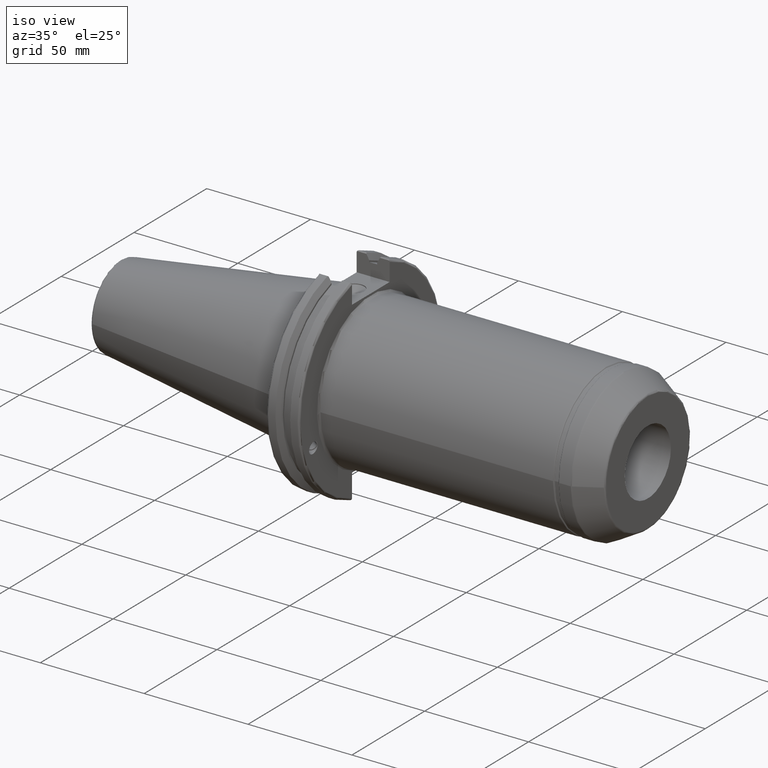
[diagram: clean part render]
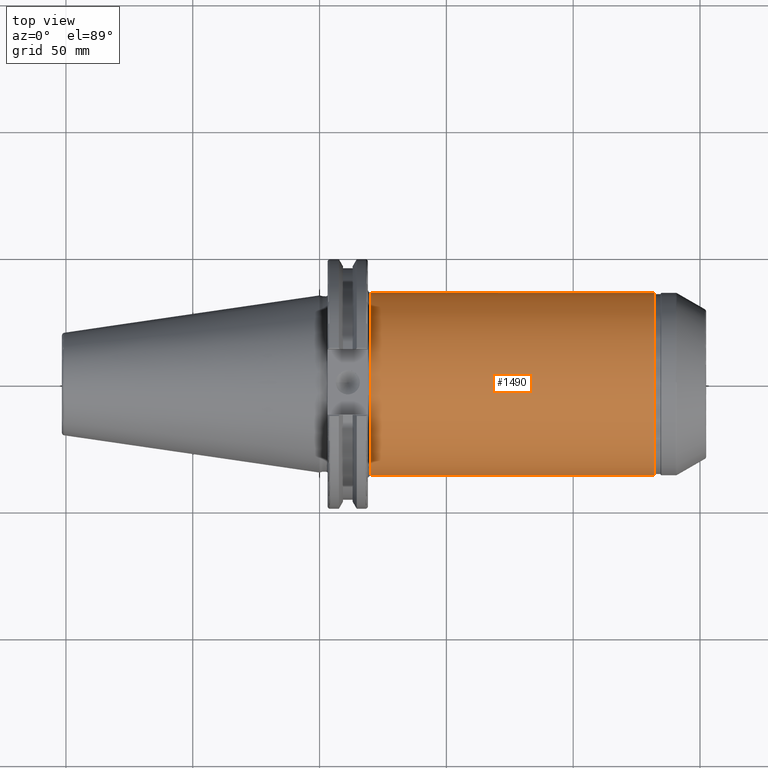
[diagram: tour spotlight — one face highlighted and labeled with its STEP entity id]
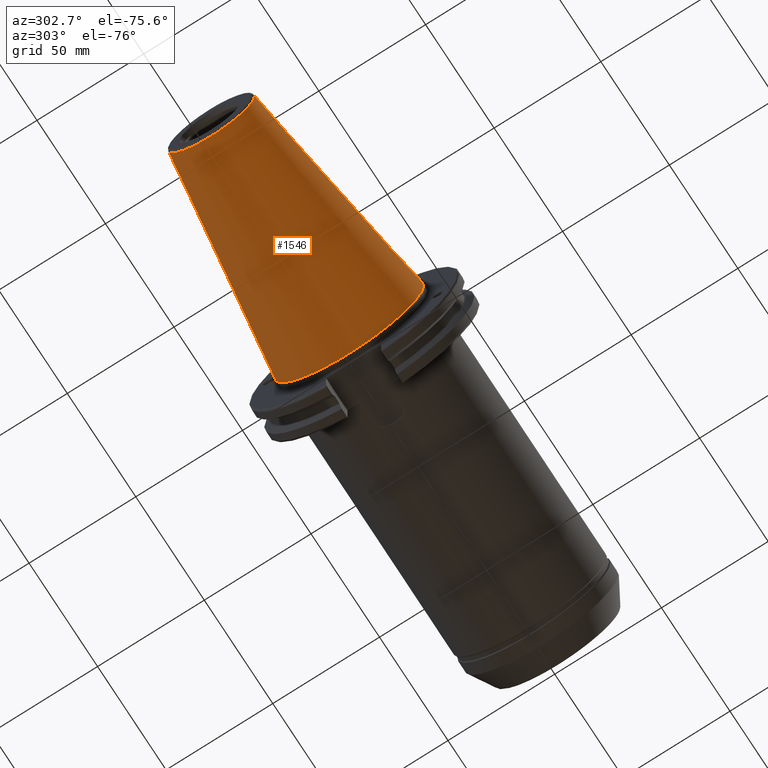
[diagram: tour spotlight — one face highlighted and labeled with its STEP entity id]
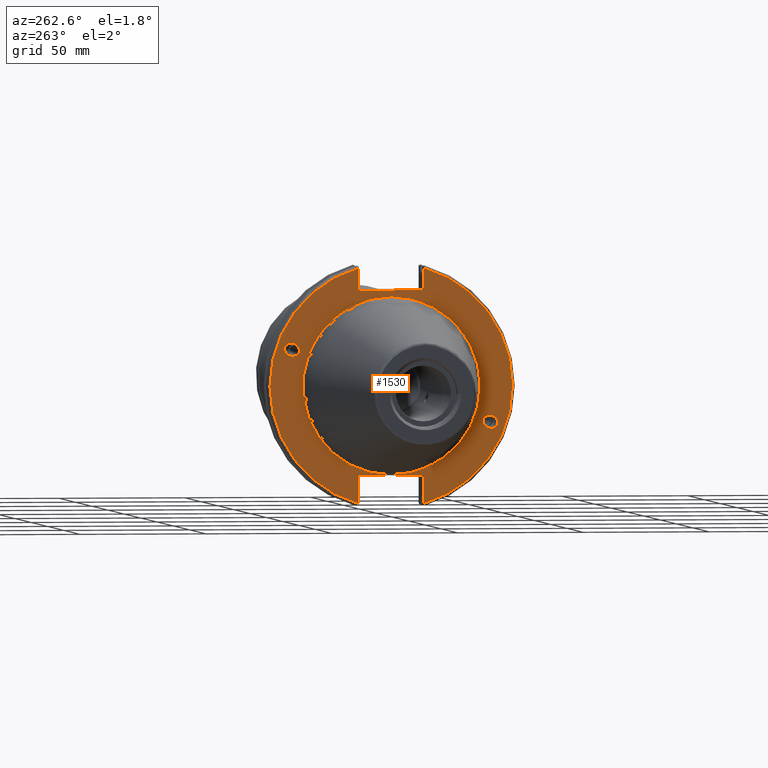
[diagram: tour spotlight — one face highlighted and labeled with its STEP entity id]
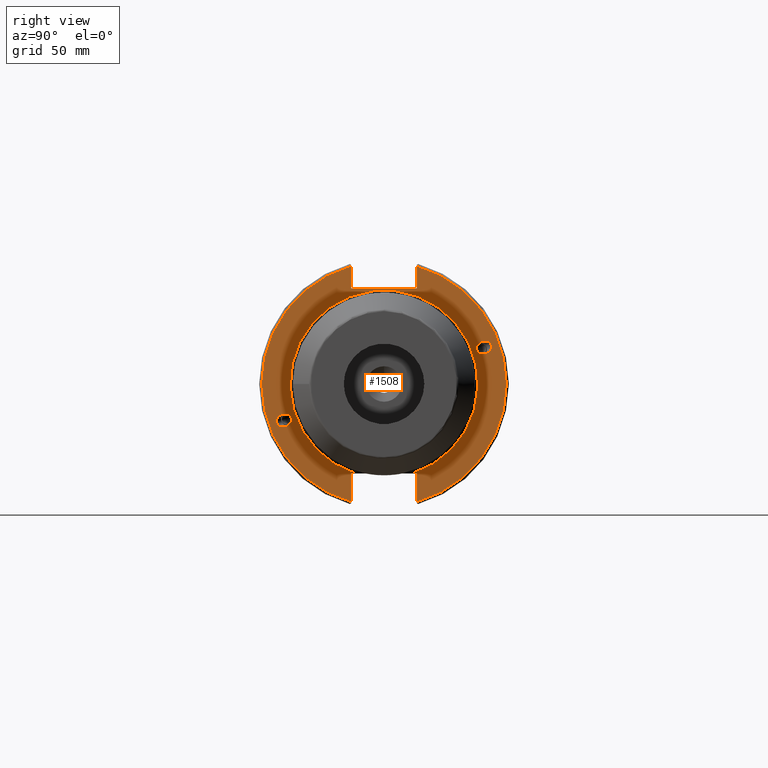
[diagram: tour spotlight — one face highlighted and labeled with its STEP entity id]
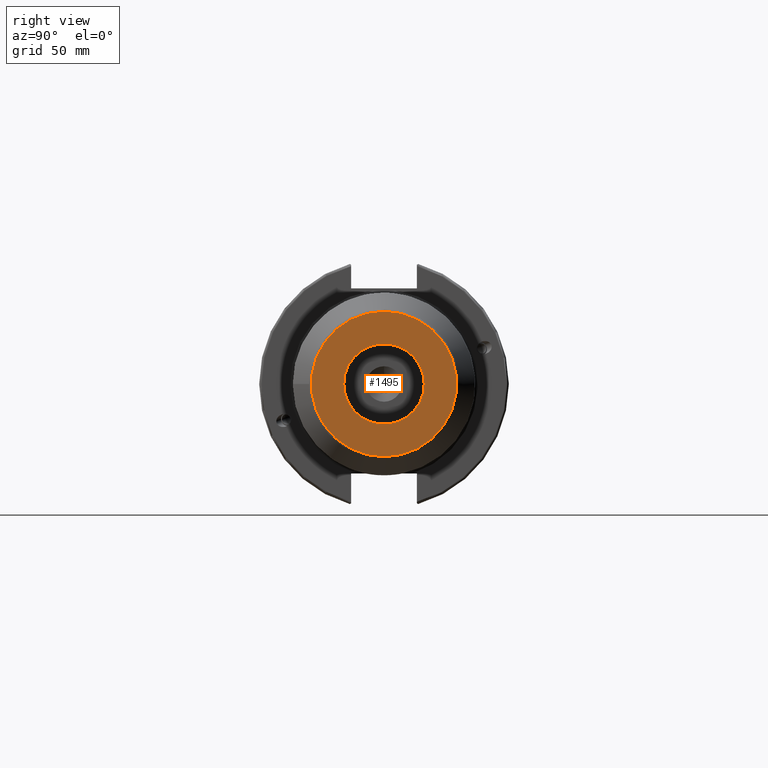
[diagram: tour spotlight — one face highlighted and labeled with its STEP entity id]
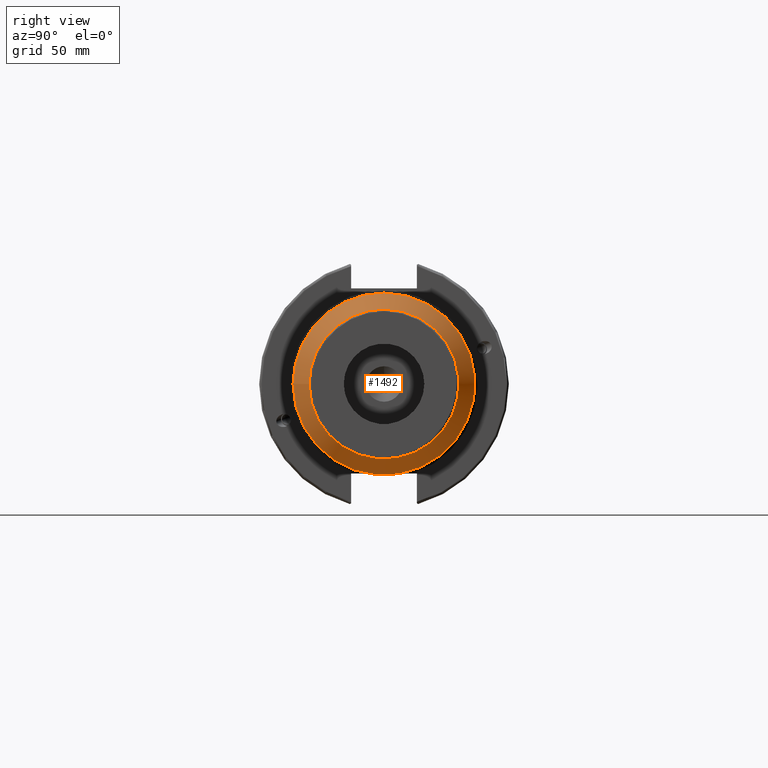
[diagram: tour spotlight — one face highlighted and labeled with its STEP entity id]
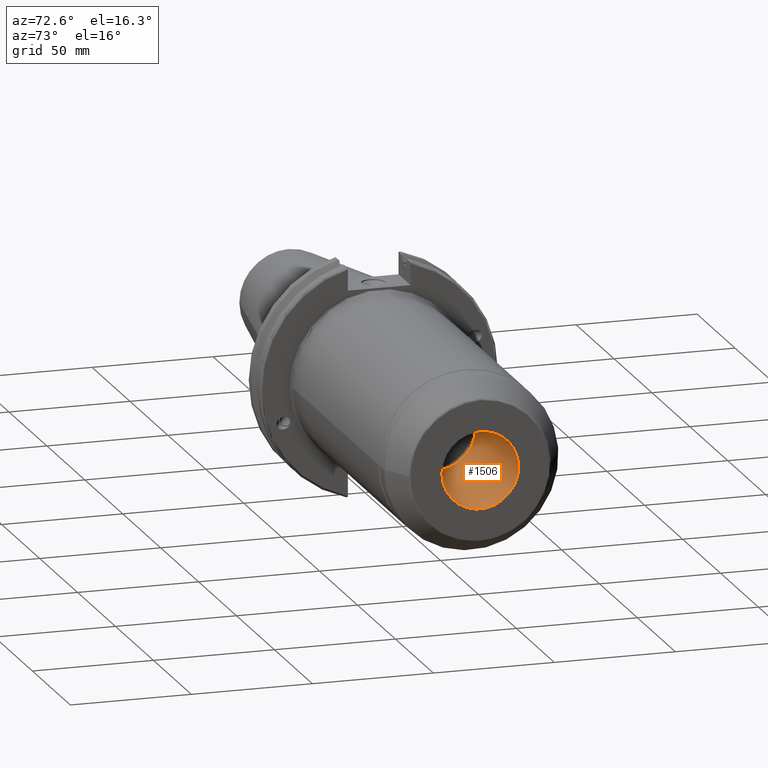
[diagram: tour spotlight — one face highlighted and labeled with its STEP entity id]
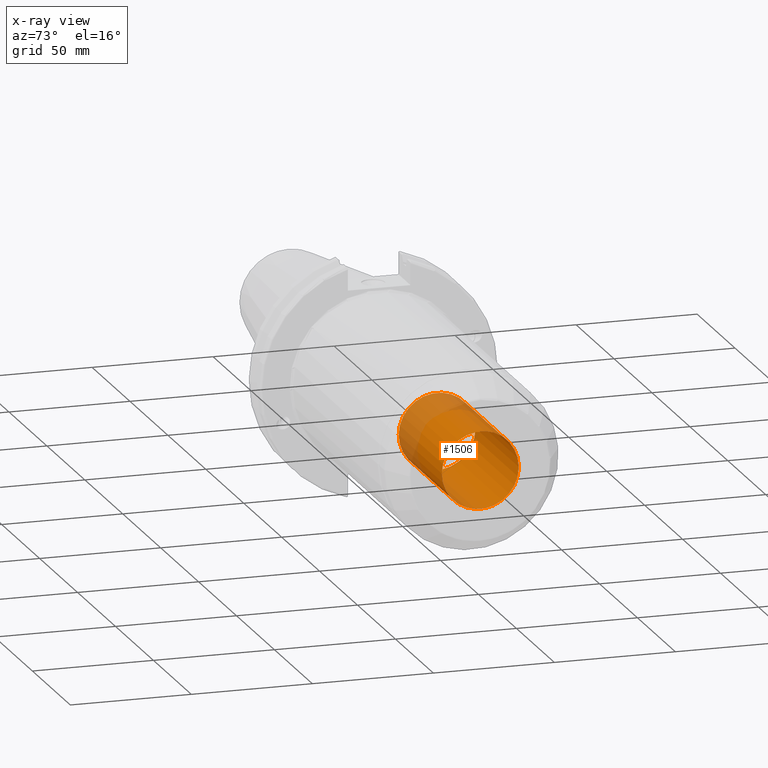
[diagram: x-ray of the same camera — body ghosted, this tour face saturated]
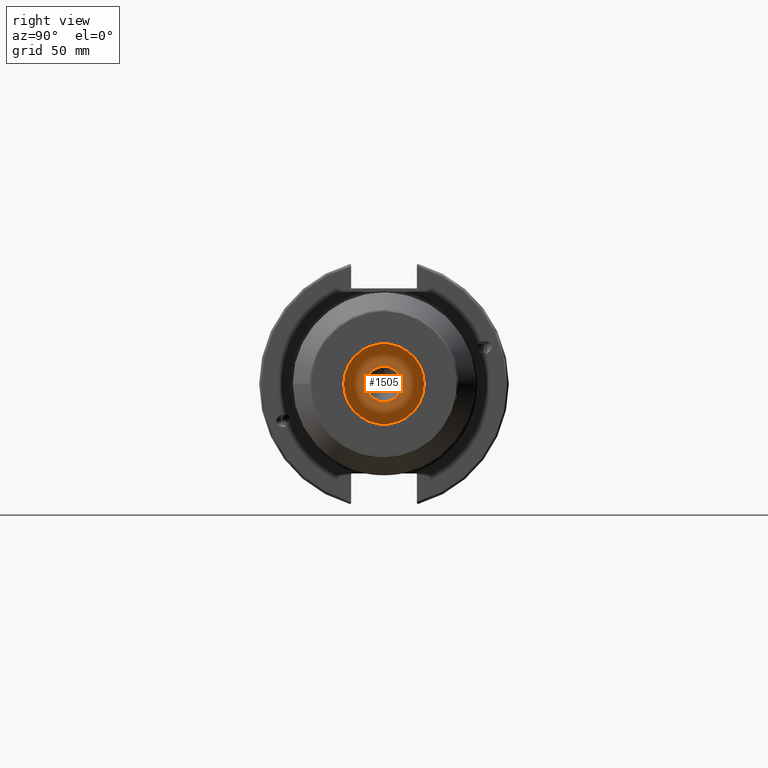
[diagram: tour spotlight — one face highlighted and labeled with its STEP entity id]
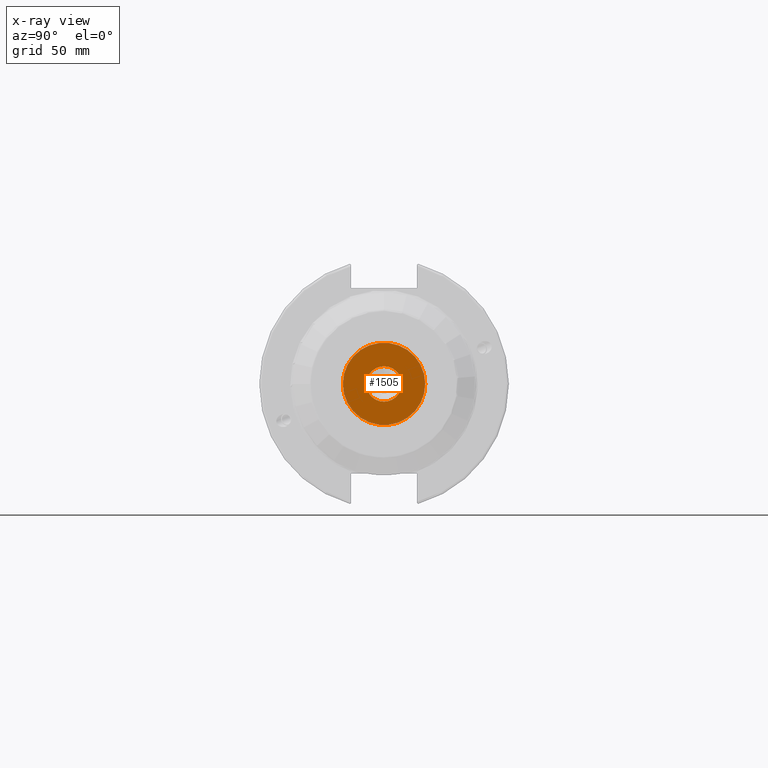
[diagram: x-ray of the same camera — body ghosted, this tour face saturated]
A machine part: a face-by-face anatomy tour. The part has 89 B-rep faces; the first image is the clean iso view, then the 8 largest visible faces are spotlighted one at a time (largest first), each with its STEP entity span.

Face 1 — top view, entity #1490. In plain terms, the highlighted cylindrical surface (bore or boss wall) has radius 36 mm, axis along (1, 0, 0).
Definition (entity closure, byte-faithful):
#99=B_SPLINE_CURVE_WITH_KNOTS('',3,(#2347,#2348,#2349,#2350,#2351,#2352,
#2353,#2354,#2355,#2356),.UNSPECIFIED.,.F.,.F.,(4,2,2,2,4),(5.19636271328388,
5.41905605272727,5.91152523905849,6.4039944253897,6.6266877648331),
 .UNSPECIFIED.);
#155=FACE_OUTER_BOUND('',#244,.T.);
#244=EDGE_LOOP('',(#1014,#1015,#1016,#1017,#1018,#1019,#1020,#1021,#1022));
#349=LINE('',#2343,#432);
#350=LINE('',#2345,#433);
#351=LINE('',#2357,#434);
#432=VECTOR('',#1839,36.);
#433=VECTOR('',#1840,10.);
#434=VECTOR('',#1841,10.);
#517=CIRCLE('',#1609,36.);
#518=CIRCLE('',#1610,36.);
#520=CIRCLE('',#1613,36.);
#521=CIRCLE('',#1614,36.);
#609=VERTEX_POINT('',#2308);
#610=VERTEX_POINT('',#2321);
#611=VERTEX_POINT('',#2323);
#613=VERTEX_POINT('',#2340);
#614=VERTEX_POINT('',#2341);
#615=VERTEX_POINT('',#2344);
#616=VERTEX_POINT('',#2346);
#767=EDGE_CURVE('',#609,#610,#517,.T.);
#768=EDGE_CURVE('',#610,#611,#518,.T.);
#771=EDGE_CURVE('',#613,#614,#520,.T.);
#772=EDGE_CURVE('',#613,#610,#349,.T.);
#773=EDGE_CURVE('',#609,#615,#350,.T.);
#774=EDGE_CURVE('',#615,#616,#99,.T.);
#775=EDGE_CURVE('',#616,#611,#351,.T.);
#776=EDGE_CURVE('',#614,#613,#521,.T.);
#1014=ORIENTED_EDGE('',*,*,#771,.F.);
#1015=ORIENTED_EDGE('',*,*,#772,.T.);
#1016=ORIENTED_EDGE('',*,*,#767,.F.);
#1017=ORIENTED_EDGE('',*,*,#773,.T.);
#1018=ORIENTED_EDGE('',*,*,#774,.T.);
#1019=ORIENTED_EDGE('',*,*,#775,.T.);
#1020=ORIENTED_EDGE('',*,*,#768,.F.);
#1021=ORIENTED_EDGE('',*,*,#772,.F.);
#1022=ORIENTED_EDGE('',*,*,#776,.F.);
#1456=CYLINDRICAL_SURFACE('',#1612,36.);
#1490=ADVANCED_FACE('',(#155),#1456,.T.);
#1609=AXIS2_PLACEMENT_3D('',#2322,#1829,#1830);
#1610=AXIS2_PLACEMENT_3D('',#2324,#1831,#1832);
#1612=AXIS2_PLACEMENT_3D('',#2339,#1835,#1836);
#1613=AXIS2_PLACEMENT_3D('',#2342,#1837,#1838);
#1614=AXIS2_PLACEMENT_3D('',#2358,#1842,#1843);
#1829=DIRECTION('center_axis',(-1.,0.,0.));
#1830=DIRECTION('ref_axis',(0.,6.12323399573677E-17,1.));
#1831=DIRECTION('center_axis',(-1.,0.,0.));
#1832=DIRECTION('ref_axis',(0.,6.12323399573677E-17,1.));
#1835=DIRECTION('center_axis',(1.,0.,0.));
#1836=DIRECTION('ref_axis',(0.,1.,0.));
#1837=DIRECTION('center_axis',(1.,0.,0.));
#1838=DIRECTION('ref_axis',(0.,-1.,1.83697019872103E-16));
#1839=DIRECTION('',(-1.,0.,0.));
#1840=DIRECTION('',(1.,0.,0.));
#1841=DIRECTION('',(-1.,0.,0.));
#1842=DIRECTION('center_axis',(1.,0.,0.));
#1843=DIRECTION('ref_axis',(0.,-1.,1.83697019872103E-16));
#2308=CARTESIAN_POINT('',(20.05,-7.03465450466478,-35.306));
#2321=CARTESIAN_POINT('',(20.05,-36.,-4.40872847693047E-15));
#2322=CARTESIAN_POINT('Origin',(20.05,0.,0.));
#2323=CARTESIAN_POINT('',(20.05,7.03465450466478,-35.306));
#2324=CARTESIAN_POINT('Origin',(20.05,0.,0.));
#2339=CARTESIAN_POINT('Origin',(75.5806624327026,0.,0.));
#2340=CARTESIAN_POINT('',(131.880384757729,-36.,-4.40872847693047E-15));
#2341=CARTESIAN_POINT('',(131.880384757729,-4.40872847693047E-15,36.));
#2342=CARTESIAN_POINT('Origin',(131.880384757729,0.,0.));
#2343=CARTESIAN_POINT('',(75.5806624327026,-36.,-4.40872847693047E-15));
#2344=CARTESIAN_POINT('',(30.922724405594,-7.03465450466478,-35.306));
#2345=CARTESIAN_POINT('',(75.5806624327026,-7.03465450466478,-35.306));
#2346=CARTESIAN_POINT('',(30.922724405594,7.03465450466479,-35.306));
#2347=CARTESIAN_POINT('Ctrl Pts',(30.922724405594,-7.03465450466478,-35.306));
#2348=CARTESIAN_POINT('Ctrl Pts',(31.3406894769426,-6.38864992420887,-35.4347152051192));
#2349=CARTESIAN_POINT('Ctrl Pts',(31.7059371752726,-5.69654690692486,-35.5538825165794));
#2350=CARTESIAN_POINT('Ctrl Pts',(32.6689434050729,-3.38276687280267,-35.8768020615896));
#2351=CARTESIAN_POINT('Ctrl Pts',(33.,-1.64156395443738,-36.));
#2352=CARTESIAN_POINT('Ctrl Pts',(33.,1.64156395443738,-36.));
#2353=CARTESIAN_POINT('Ctrl Pts',(32.6689434050729,3.38276687280267,-35.8768020615896));
#2354=CARTESIAN_POINT('Ctrl Pts',(31.7059371752726,5.69654690692486,-35.5538825165794));
#2355=CARTESIAN_POINT('Ctrl Pts',(31.3406894769426,6.38864992420887,-35.4347152051192));
#2356=CARTESIAN_POINT('Ctrl Pts',(30.922724405594,7.03465450466478,-35.306));
#2357=CARTESIAN_POINT('',(75.5806624327026,7.03465450466478,-35.306));
#2358=CARTESIAN_POINT('Origin',(131.880384757729,0.,0.));

Face 2 — auxiliary view, entity #1546. In plain terms, the highlighted conical surface has half-angle 8.297 deg.
Definition (entity closure, byte-faithful):
#141=CONICAL_SURFACE('',#1753,27.5166666666666,0.14481249823894);
#211=FACE_OUTER_BOUND('',#315,.T.);
#315=EDGE_LOOP('',(#1324,#1325,#1326,#1327,#1328));
#412=LINE('',#2910,#495);
#495=VECTOR('',#2184,27.5166666666666);
#580=CIRCLE('',#1747,20.233121911427);
#581=CIRCLE('',#1748,20.233121911427);
#585=CIRCLE('',#1754,34.925);
#735=VERTEX_POINT('',#2897);
#736=VERTEX_POINT('',#2898);
#739=VERTEX_POINT('',#2908);
#945=EDGE_CURVE('',#735,#736,#580,.T.);
#946=EDGE_CURVE('',#736,#735,#581,.T.);
#950=EDGE_CURVE('',#739,#739,#585,.T.);
#951=EDGE_CURVE('',#739,#736,#412,.T.);
#1324=ORIENTED_EDGE('',*,*,#950,.F.);
#1325=ORIENTED_EDGE('',*,*,#951,.T.);
#1326=ORIENTED_EDGE('',*,*,#945,.F.);
#1327=ORIENTED_EDGE('',*,*,#946,.F.);
#1328=ORIENTED_EDGE('',*,*,#951,.F.);
#1546=ADVANCED_FACE('',(#211),#141,.T.);
#1747=AXIS2_PLACEMENT_3D('',#2899,#2168,#2169);
#1748=AXIS2_PLACEMENT_3D('',#2900,#2170,#2171);
#1753=AXIS2_PLACEMENT_3D('',#2907,#2180,#2181);
#1754=AXIS2_PLACEMENT_3D('',#2909,#2182,#2183);
#2168=DIRECTION('center_axis',(-1.,0.,0.));
#2169=DIRECTION('ref_axis',(0.,-1.,3.06161699786838E-17));
#2170=DIRECTION('center_axis',(-1.,0.,0.));
#2171=DIRECTION('ref_axis',(0.,-1.,3.06161699786838E-17));
#2180=DIRECTION('center_axis',(1.,0.,0.));
#2181=DIRECTION('ref_axis',(0.,1.,0.));
#2182=DIRECTION('center_axis',(1.,0.,0.));
#2183=DIRECTION('ref_axis',(0.,0.,-1.));
#2184=DIRECTION('',(-0.989532981063281,0.144306893071729,1.76724974695192E-17));
#2897=CARTESIAN_POINT('',(-100.744306893072,-2.47784279855872E-15,20.233121911427));
#2898=CARTESIAN_POINT('',(-100.744306893072,-20.233121911427,-2.47784279855872E-15));
#2899=CARTESIAN_POINT('Origin',(-100.744306893072,0.,-3.09730349819841E-15));
#2900=CARTESIAN_POINT('Origin',(-100.744306893072,0.,-3.09730349819841E-15));
#2907=CARTESIAN_POINT('Origin',(-50.8,0.,0.));
#2908=CARTESIAN_POINT('',(-8.88178419700125E-15,-34.925,-4.27707894602213E-15));
#2909=CARTESIAN_POINT('Origin',(0.,0.,0.));
#2910=CARTESIAN_POINT('',(-50.8,-27.5166666666666,-3.3698197756538E-15));

Face 3 — auxiliary view, entity #1530. In plain terms, the highlighted planar face has unit normal (-1, 0, 0).
Definition (entity closure, byte-faithful):
#41=ELLIPSE('',#1691,3.05193647190364,2.5);
#50=ELLIPSE('',#1714,3.05193647190364,2.5);
#62=FACE_BOUND('',#296,.T.);
#63=FACE_BOUND('',#297,.T.);
#64=FACE_BOUND('',#298,.T.);
#76=PLANE('',#1724);
#195=FACE_OUTER_BOUND('',#295,.T.);
#295=EDGE_LOOP('',(#1221,#1222,#1223,#1224,#1225,#1226,#1227,#1228));
#296=EDGE_LOOP('',(#1229));
#297=EDGE_LOOP('',(#1230));
#298=EDGE_LOOP('',(#1231));
#382=LINE('',#2659,#465);
#383=LINE('',#2661,#466);
#384=LINE('',#2663,#467);
#385=LINE('',#2667,#468);
#386=LINE('',#2669,#469);
#387=LINE('',#2670,#470);
#465=VECTOR('',#2096,10.);
#466=VECTOR('',#2097,10.);
#467=VECTOR('',#2098,10.);
#468=VECTOR('',#2101,10.);
#469=VECTOR('',#2102,10.);
#470=VECTOR('',#2103,10.);
#570=CIRCLE('',#1722,35.125);
#572=CIRCLE('',#1725,48.2125);
#573=CIRCLE('',#1726,48.2125);
#666=VERTEX_POINT('',#2550);
#681=VERTEX_POINT('',#2635);
#686=VERTEX_POINT('',#2650);
#687=VERTEX_POINT('',#2655);
#688=VERTEX_POINT('',#2656);
#689=VERTEX_POINT('',#2658);
#690=VERTEX_POINT('',#2660);
#691=VERTEX_POINT('',#2662);
#692=VERTEX_POINT('',#2664);
#693=VERTEX_POINT('',#2666);
#694=VERTEX_POINT('',#2668);
#849=EDGE_CURVE('',#666,#666,#41,.T.);
#872=EDGE_CURVE('',#681,#681,#50,.T.);
#879=EDGE_CURVE('',#686,#686,#570,.T.);
#881=EDGE_CURVE('',#687,#688,#572,.T.);
#882=EDGE_CURVE('',#687,#689,#382,.T.);
#883=EDGE_CURVE('',#689,#690,#383,.T.);
#884=EDGE_CURVE('',#690,#691,#384,.T.);
#885=EDGE_CURVE('',#692,#691,#573,.T.);
#886=EDGE_CURVE('',#692,#693,#385,.T.);
#887=EDGE_CURVE('',#693,#694,#386,.T.);
#888=EDGE_CURVE('',#694,#688,#387,.T.);
#1221=ORIENTED_EDGE('',*,*,#881,.F.);
#1222=ORIENTED_EDGE('',*,*,#882,.T.);
#1223=ORIENTED_EDGE('',*,*,#883,.T.);
#1224=ORIENTED_EDGE('',*,*,#884,.T.);
#1225=ORIENTED_EDGE('',*,*,#885,.F.);
#1226=ORIENTED_EDGE('',*,*,#886,.T.);
#1227=ORIENTED_EDGE('',*,*,#887,.T.);
#1228=ORIENTED_EDGE('',*,*,#888,.T.);
#1229=ORIENTED_EDGE('',*,*,#849,.T.);
#1230=ORIENTED_EDGE('',*,*,#872,.T.);
#1231=ORIENTED_EDGE('',*,*,#879,.F.);
#1530=ADVANCED_FACE('',(#195,#62,#63,#64),#76,.T.);
#1691=AXIS2_PLACEMENT_3D('',#2552,#2017,#2018);
#1714=AXIS2_PLACEMENT_3D('',#2637,#2070,#2071);
#1722=AXIS2_PLACEMENT_3D('',#2652,#2088,#2089);
#1724=AXIS2_PLACEMENT_3D('',#2654,#2092,#2093);
#1725=AXIS2_PLACEMENT_3D('',#2657,#2094,#2095);
#1726=AXIS2_PLACEMENT_3D('',#2665,#2099,#2100);
#2017=DIRECTION('center_axis',(1.,0.,0.));
#2018=DIRECTION('ref_axis',(0.,-0.939692620785908,-0.342020143325668));
#2070=DIRECTION('center_axis',(1.,0.,0.));
#2071=DIRECTION('ref_axis',(0.,0.939692620785908,0.342020143325669));
#2088=DIRECTION('center_axis',(-1.,0.,0.));
#2089=DIRECTION('ref_axis',(0.,-1.,1.83697019872103E-16));
#2092=DIRECTION('center_axis',(-1.,0.,0.));
#2093=DIRECTION('ref_axis',(0.,0.,1.));
#2094=DIRECTION('center_axis',(1.,0.,0.));
#2095=DIRECTION('ref_axis',(0.,-1.,1.60812264967664E-16));
#2096=DIRECTION('',(0.,0.,-1.));
#2097=DIRECTION('',(0.,1.,0.));
#2098=DIRECTION('',(0.,0.,1.));
#2099=DIRECTION('center_axis',(1.,0.,0.));
#2100=DIRECTION('ref_axis',(0.,1.,-6.12323399573677E-17));
#2101=DIRECTION('',(0.,0.,1.));
#2102=DIRECTION('',(0.,-1.,0.));
#2103=DIRECTION('',(0.,0.,-1.));
#2550=CARTESIAN_POINT('',(3.175,-36.5992078912529,-13.3210222701368));
#2552=CARTESIAN_POINT('Origin',(3.175,-39.4670900730082,-14.3648460196781));
#2635=CARTESIAN_POINT('',(3.175,36.5992078912529,13.3210222701368));
#2637=CARTESIAN_POINT('Origin',(3.175,39.4670900730082,14.3648460196781));
#2650=CARTESIAN_POINT('',(3.175,-4.30157188200508E-15,35.125));
#2652=CARTESIAN_POINT('Origin',(3.175,0.,0.));
#2654=CARTESIAN_POINT('Origin',(3.175,49.2125,0.));
#2655=CARTESIAN_POINT('',(3.175,-12.95,46.4407434937254));
#2656=CARTESIAN_POINT('',(3.175,-12.95,-46.4407434937254));
#2657=CARTESIAN_POINT('Origin',(3.175,0.,0.));
#2658=CARTESIAN_POINT('',(3.175,-12.95,37.719));
#2659=CARTESIAN_POINT('',(3.175,-12.95,18.8595));
#2660=CARTESIAN_POINT('',(3.175,12.95,37.719));
#2661=CARTESIAN_POINT('',(3.175,24.60625,37.719));
#2662=CARTESIAN_POINT('',(3.175,12.95,46.4407434937254));
#2663=CARTESIAN_POINT('',(3.175,12.95,18.8595));
#2664=CARTESIAN_POINT('',(3.175,12.95,-46.4407434937254));
#2665=CARTESIAN_POINT('Origin',(3.175,0.,0.));
#2666=CARTESIAN_POINT('',(3.17499999999999,12.95,-35.306));
#2667=CARTESIAN_POINT('',(3.175,12.95,-17.653));
#2668=CARTESIAN_POINT('',(3.175,-12.95,-35.306));
#2669=CARTESIAN_POINT('',(3.175,24.60625,-35.306));
#2670=CARTESIAN_POINT('',(3.175,-12.95,-17.653));

Face 4 — right view, entity #1508. In plain terms, the highlighted planar face has unit normal (1, 0, 0).
Definition (entity closure, byte-faithful):
#31=ELLIPSE('',#1667,3.05193647190364,2.5);
#32=ELLIPSE('',#1668,3.05193647190364,2.5);
#54=FACE_BOUND('',#266,.T.);
#55=FACE_BOUND('',#267,.T.);
#71=PLANE('',#1664);
#173=FACE_OUTER_BOUND('',#265,.T.);
#265=EDGE_LOOP('',(#1104,#1105,#1106,#1107,#1108,#1109,#1110,#1111,#1112,
#1113));
#266=EDGE_LOOP('',(#1114));
#267=EDGE_LOOP('',(#1115));
#359=LINE('',#2442,#442);
#360=LINE('',#2444,#443);
#361=LINE('',#2448,#444);
#362=LINE('',#2450,#445);
#363=LINE('',#2452,#446);
#364=LINE('',#2456,#447);
#365=LINE('',#2457,#448);
#442=VECTOR('',#1951,10.);
#443=VECTOR('',#1952,10.);
#444=VECTOR('',#1955,10.);
#445=VECTOR('',#1956,10.);
#446=VECTOR('',#1957,10.);
#447=VECTOR('',#1960,10.);
#448=VECTOR('',#1961,10.);
#519=CIRCLE('',#1611,37.);
#554=CIRCLE('',#1665,48.2125);
#555=CIRCLE('',#1666,48.2125);
#608=VERTEX_POINT('',#2307);
#612=VERTEX_POINT('',#2325);
#642=VERTEX_POINT('',#2441);
#643=VERTEX_POINT('',#2443);
#644=VERTEX_POINT('',#2445);
#645=VERTEX_POINT('',#2447);
#646=VERTEX_POINT('',#2449);
#647=VERTEX_POINT('',#2451);
#648=VERTEX_POINT('',#2453);
#649=VERTEX_POINT('',#2455);
#650=VERTEX_POINT('',#2458);
#651=VERTEX_POINT('',#2460);
#770=EDGE_CURVE('',#612,#608,#519,.T.);
#816=EDGE_CURVE('',#612,#642,#359,.T.);
#817=EDGE_CURVE('',#642,#643,#360,.T.);
#818=EDGE_CURVE('',#644,#643,#554,.T.);
#819=EDGE_CURVE('',#644,#645,#361,.T.);
#820=EDGE_CURVE('',#645,#646,#362,.T.);
#821=EDGE_CURVE('',#646,#647,#363,.T.);
#822=EDGE_CURVE('',#648,#647,#555,.T.);
#823=EDGE_CURVE('',#648,#649,#364,.T.);
#824=EDGE_CURVE('',#649,#608,#365,.T.);
#825=EDGE_CURVE('',#650,#650,#31,.T.);
#826=EDGE_CURVE('',#651,#651,#32,.T.);
#1104=ORIENTED_EDGE('',*,*,#770,.F.);
#1105=ORIENTED_EDGE('',*,*,#816,.T.);
#1106=ORIENTED_EDGE('',*,*,#817,.T.);
#1107=ORIENTED_EDGE('',*,*,#818,.F.);
#1108=ORIENTED_EDGE('',*,*,#819,.T.);
#1109=ORIENTED_EDGE('',*,*,#820,.T.);
#1110=ORIENTED_EDGE('',*,*,#821,.T.);
#1111=ORIENTED_EDGE('',*,*,#822,.F.);
#1112=ORIENTED_EDGE('',*,*,#823,.T.);
#1113=ORIENTED_EDGE('',*,*,#824,.T.);
#1114=ORIENTED_EDGE('',*,*,#825,.T.);
#1115=ORIENTED_EDGE('',*,*,#826,.T.);
#1508=ADVANCED_FACE('',(#173,#54,#55),#71,.T.);
#1611=AXIS2_PLACEMENT_3D('',#2338,#1833,#1834);
#1664=AXIS2_PLACEMENT_3D('',#2440,#1949,#1950);
#1665=AXIS2_PLACEMENT_3D('',#2446,#1953,#1954);
#1666=AXIS2_PLACEMENT_3D('',#2454,#1958,#1959);
#1667=AXIS2_PLACEMENT_3D('',#2459,#1962,#1963);
#1668=AXIS2_PLACEMENT_3D('',#2461,#1964,#1965);
#1833=DIRECTION('center_axis',(1.,0.,0.));
#1834=DIRECTION('ref_axis',(0.,6.12323399573676E-17,1.));
#1949=DIRECTION('center_axis',(1.,0.,0.));
#1950=DIRECTION('ref_axis',(0.,0.,-1.));
#1951=DIRECTION('',(0.,1.,0.));
#1952=DIRECTION('',(0.,0.,-1.));
#1953=DIRECTION('center_axis',(-1.,0.,0.));
#1954=DIRECTION('ref_axis',(0.,1.,-6.12323399573677E-17));
#1955=DIRECTION('',(0.,0.,-1.));
#1956=DIRECTION('',(0.,-1.,0.));
#1957=DIRECTION('',(0.,0.,1.));
#1958=DIRECTION('center_axis',(-1.,0.,0.));
#1959=DIRECTION('ref_axis',(0.,-1.,1.60812264967664E-16));
#1960=DIRECTION('',(0.,0.,1.));
#1961=DIRECTION('',(0.,1.,0.));
#1962=DIRECTION('center_axis',(-1.,0.,0.));
#1963=DIRECTION('ref_axis',(0.,0.939692620785908,0.342020143325669));
#1964=DIRECTION('center_axis',(-1.,0.,0.));
#1965=DIRECTION('ref_axis',(0.,-0.939692620785908,-0.342020143325669));
#2307=CARTESIAN_POINT('',(19.05,-11.0673557817575,-35.306));
#2325=CARTESIAN_POINT('',(19.05,11.0673557817575,-35.306));
#2338=CARTESIAN_POINT('Origin',(19.05,0.,0.));
#2440=CARTESIAN_POINT('Origin',(19.05,0.,0.));
#2441=CARTESIAN_POINT('',(19.05,12.95,-35.306));
#2442=CARTESIAN_POINT('',(19.05,-3.33066907387547E-15,-35.306));
#2443=CARTESIAN_POINT('',(19.05,12.95,-46.4407434937254));
#2444=CARTESIAN_POINT('',(19.05,12.95,-17.653));
#2445=CARTESIAN_POINT('',(19.05,12.95,46.4407434937254));
#2446=CARTESIAN_POINT('Origin',(19.05,0.,0.));
#2447=CARTESIAN_POINT('',(19.05,12.95,37.719));
#2448=CARTESIAN_POINT('',(19.05,12.95,18.8595));
#2449=CARTESIAN_POINT('',(19.05,-12.95,37.719));
#2450=CARTESIAN_POINT('',(19.05,0.,37.719));
#2451=CARTESIAN_POINT('',(19.05,-12.95,46.4407434937254));
#2452=CARTESIAN_POINT('',(19.05,-12.95,18.8595));
#2453=CARTESIAN_POINT('',(19.05,-12.95,-46.4407434937254));
#2454=CARTESIAN_POINT('Origin',(19.05,0.,0.));
#2455=CARTESIAN_POINT('',(19.05,-12.95,-35.306));
#2456=CARTESIAN_POINT('',(19.05,-12.95,-17.653));
#2457=CARTESIAN_POINT('',(19.05,-3.33066907387547E-15,-35.306));
#2458=CARTESIAN_POINT('',(19.05,36.5992078912529,13.3210222701368));
#2459=CARTESIAN_POINT('Origin',(19.05,39.4670900730082,14.3648460196781));
#2460=CARTESIAN_POINT('',(19.05,-36.5992078912529,-13.3210222701368));
#2461=CARTESIAN_POINT('Origin',(19.05,-39.4670900730082,-14.3648460196781));

Face 5 — right view, entity #1495. In plain terms, the highlighted planar face has unit normal (1, 0, 0).
Definition (entity closure, byte-faithful):
#51=FACE_BOUND('',#250,.T.);
#68=PLANE('',#1630);
#160=FACE_OUTER_BOUND('',#249,.T.);
#249=EDGE_LOOP('',(#1046));
#250=EDGE_LOOP('',(#1047));
#531=CIRCLE('',#1628,28.6726497308104);
#533=CIRCLE('',#1631,15.875);
#625=VERTEX_POINT('',#2382);
#626=VERTEX_POINT('',#2386);
#788=EDGE_CURVE('',#625,#625,#531,.T.);
#790=EDGE_CURVE('',#626,#626,#533,.T.);
#1046=ORIENTED_EDGE('',*,*,#788,.F.);
#1047=ORIENTED_EDGE('',*,*,#790,.F.);
#1495=ADVANCED_FACE('',(#160,#51),#68,.T.);
#1628=AXIS2_PLACEMENT_3D('',#2383,#1872,#1873);
#1630=AXIS2_PLACEMENT_3D('',#2385,#1876,#1877);
#1631=AXIS2_PLACEMENT_3D('',#2387,#1878,#1879);
#1872=DIRECTION('center_axis',(-1.,0.,0.));
#1873=DIRECTION('ref_axis',(0.,-1.,1.83697019872103E-16));
#1876=DIRECTION('center_axis',(1.,0.,0.));
#1877=DIRECTION('ref_axis',(0.,0.,-1.));
#1878=DIRECTION('center_axis',(1.,0.,0.));
#1879=DIRECTION('ref_axis',(0.,0.,-1.));
#2382=CARTESIAN_POINT('',(152.4,-3.51138687159102E-15,28.6726497308104));
#2383=CARTESIAN_POINT('Origin',(152.4,0.,0.));
#2385=CARTESIAN_POINT('Origin',(152.4,15.875,0.));
#2386=CARTESIAN_POINT('',(152.4,-15.875,-1.94412679364642E-15));
#2387=CARTESIAN_POINT('Origin',(152.4,0.,0.));

Face 6 — right view, entity #1492. In plain terms, the highlighted conical surface has half-angle 30 deg.
Definition (entity closure, byte-faithful):
#135=CONICAL_SURFACE('',#1621,32.625,0.523598775598299);
#157=FACE_OUTER_BOUND('',#246,.T.);
#246=EDGE_LOOP('',(#1029,#1030,#1031,#1032,#1033,#1034));
#352=LINE('',#2373,#435);
#435=VECTOR('',#1860,32.625);
#522=CIRCLE('',#1616,35.8660254037844);
#523=CIRCLE('',#1617,35.8660254037844);
#527=CIRCLE('',#1622,29.5386751345948);
#528=CIRCLE('',#1623,29.5386751345948);
#617=VERTEX_POINT('',#2360);
#618=VERTEX_POINT('',#2361);
#621=VERTEX_POINT('',#2370);
#622=VERTEX_POINT('',#2371);
#777=EDGE_CURVE('',#617,#618,#522,.T.);
#778=EDGE_CURVE('',#618,#617,#523,.T.);
#782=EDGE_CURVE('',#621,#622,#527,.T.);
#783=EDGE_CURVE('',#621,#618,#352,.T.);
#784=EDGE_CURVE('',#622,#621,#528,.T.);
#1029=ORIENTED_EDGE('',*,*,#782,.F.);
#1030=ORIENTED_EDGE('',*,*,#783,.T.);
#1031=ORIENTED_EDGE('',*,*,#777,.F.);
#1032=ORIENTED_EDGE('',*,*,#778,.F.);
#1033=ORIENTED_EDGE('',*,*,#783,.F.);
#1034=ORIENTED_EDGE('',*,*,#784,.F.);
#1492=ADVANCED_FACE('',(#157),#135,.T.);
#1616=AXIS2_PLACEMENT_3D('',#2362,#1846,#1847);
#1617=AXIS2_PLACEMENT_3D('',#2363,#1848,#1849);
#1621=AXIS2_PLACEMENT_3D('',#2369,#1856,#1857);
#1622=AXIS2_PLACEMENT_3D('',#2372,#1858,#1859);
#1623=AXIS2_PLACEMENT_3D('',#2374,#1861,#1862);
#1846=DIRECTION('center_axis',(-1.,0.,0.));
#1847=DIRECTION('ref_axis',(0.,-1.,3.06161699786838E-17));
#1848=DIRECTION('center_axis',(-1.,0.,0.));
#1849=DIRECTION('ref_axis',(0.,-1.,3.06161699786838E-17));
#1856=DIRECTION('center_axis',(-1.,0.,0.));
#1857=DIRECTION('ref_axis',(0.,1.,0.));
#1858=DIRECTION('center_axis',(1.,0.,0.));
#1859=DIRECTION('ref_axis',(0.,-1.,3.06161699786838E-17));
#1860=DIRECTION('',(-0.866025403784438,-0.500000000000001,-6.12323399573677E-17));
#1861=DIRECTION('center_axis',(1.,0.,0.));
#1862=DIRECTION('ref_axis',(0.,-1.,3.06161699786838E-17));
#2360=CARTESIAN_POINT('',(140.940707856479,-4.39232132088823E-15,35.8660254037844));
#2361=CARTESIAN_POINT('',(140.940707856479,-35.8660254037844,-4.39232132088823E-15));
#2362=CARTESIAN_POINT('Origin',(140.940707856479,0.,-5.49040165111028E-15));
#2363=CARTESIAN_POINT('Origin',(140.940707856479,0.,-5.49040165111028E-15));
#2369=CARTESIAN_POINT('Origin',(146.554328524455,0.,0.));
#2370=CARTESIAN_POINT('',(151.9,-29.5386751345948,-3.6174443954635E-15));
#2371=CARTESIAN_POINT('',(151.9,-3.61744439546351E-15,29.5386751345948));
#2372=CARTESIAN_POINT('Origin',(151.9,0.,-4.52180549432938E-15));
#2373=CARTESIAN_POINT('',(146.554328524455,-32.625,-3.99541018221824E-15));
#2374=CARTESIAN_POINT('Origin',(151.9,0.,-4.52180549432938E-15));

Face 7 — auxiliary view, entity #1506. An x-ray twin of the same camera follows (body ghosted, this face saturated) — the face is partly hidden behind the body. In plain terms, the highlighted cylindrical surface (bore or boss wall) has radius 15.875 mm, axis along (1, 0, 0).
Definition (entity closure, byte-faithful):
#171=FACE_OUTER_BOUND('',#262,.T.);
#262=EDGE_LOOP('',(#1098,#1099,#1100,#1101));
#358=LINE('',#2437,#441);
#441=VECTOR('',#1944,15.875);
#533=CIRCLE('',#1631,15.875);
#553=CIRCLE('',#1662,15.875);
#626=VERTEX_POINT('',#2386);
#641=VERTEX_POINT('',#2436);
#790=EDGE_CURVE('',#626,#626,#533,.T.);
#814=EDGE_CURVE('',#626,#641,#358,.T.);
#815=EDGE_CURVE('',#641,#641,#553,.T.);
#1098=ORIENTED_EDGE('',*,*,#790,.T.);
#1099=ORIENTED_EDGE('',*,*,#814,.T.);
#1100=ORIENTED_EDGE('',*,*,#815,.F.);
#1101=ORIENTED_EDGE('',*,*,#814,.F.);
#1461=CYLINDRICAL_SURFACE('',#1661,15.875);
#1506=ADVANCED_FACE('',(#171),#1461,.F.);
#1631=AXIS2_PLACEMENT_3D('',#2387,#1878,#1879);
#1661=AXIS2_PLACEMENT_3D('',#2435,#1942,#1943);
#1662=AXIS2_PLACEMENT_3D('',#2438,#1945,#1946);
#1878=DIRECTION('center_axis',(1.,0.,0.));
#1879=DIRECTION('ref_axis',(0.,0.,-1.));
#1942=DIRECTION('center_axis',(1.,0.,0.));
#1943=DIRECTION('ref_axis',(0.,1.,0.));
#1944=DIRECTION('',(-1.,0.,0.));
#1945=DIRECTION('center_axis',(1.,0.,0.));
#1946=DIRECTION('ref_axis',(0.,0.,-1.));
#2386=CARTESIAN_POINT('',(152.4,-15.875,-1.94412679364642E-15));
#2387=CARTESIAN_POINT('Origin',(152.4,0.,0.));
#2435=CARTESIAN_POINT('Origin',(123.9,0.,0.));
#2436=CARTESIAN_POINT('',(95.4,-15.875,-1.94412679364642E-15));
#2437=CARTESIAN_POINT('',(123.9,-15.875,-1.94412679364642E-15));
#2438=CARTESIAN_POINT('Origin',(95.4,0.,0.));

Face 8 — right view, entity #1505. An x-ray twin of the same camera follows (body ghosted, this face saturated) — the face is partly hidden behind the body. In plain terms, the highlighted planar face has unit normal (1, 0, 0).
Definition (entity closure, byte-faithful):
#52=FACE_BOUND('',#261,.T.);
#69=PLANE('',#1660);
#170=FACE_OUTER_BOUND('',#260,.T.);
#260=EDGE_LOOP('',(#1096));
#261=EDGE_LOOP('',(#1097));
#516=CIRCLE('',#1607,7.);
#552=CIRCLE('',#1659,16.275);
#607=VERTEX_POINT('',#2303);
#640=VERTEX_POINT('',#2431);
#764=EDGE_CURVE('',#607,#607,#516,.T.);
#813=EDGE_CURVE('',#640,#640,#552,.T.);
#1096=ORIENTED_EDGE('',*,*,#813,.T.);
#1097=ORIENTED_EDGE('',*,*,#764,.T.);
#1505=ADVANCED_FACE('',(#170,#52),#69,.T.);
#1607=AXIS2_PLACEMENT_3D('',#2304,#1824,#1825);
#1659=AXIS2_PLACEMENT_3D('',#2433,#1938,#1939);
#1660=AXIS2_PLACEMENT_3D('',#2434,#1940,#1941);
#1824=DIRECTION('center_axis',(-1.,0.,0.));
#1825=DIRECTION('ref_axis',(0.,0.,-1.));
#1938=DIRECTION('center_axis',(1.,0.,0.));
#1939=DIRECTION('ref_axis',(0.,0.,-1.));
#1940=DIRECTION('center_axis',(1.,0.,0.));
#1941=DIRECTION('ref_axis',(0.,0.,-1.));
#2303=CARTESIAN_POINT('',(91.4,8.57252759403147E-16,7.));
#2304=CARTESIAN_POINT('Origin',(91.4,0.,0.));
#2431=CARTESIAN_POINT('',(91.4,-16.275,-1.99311266561232E-15));
#2433=CARTESIAN_POINT('Origin',(91.4,0.,0.));
#2434=CARTESIAN_POINT('Origin',(91.4,-6.26307533728533E-16,0.));